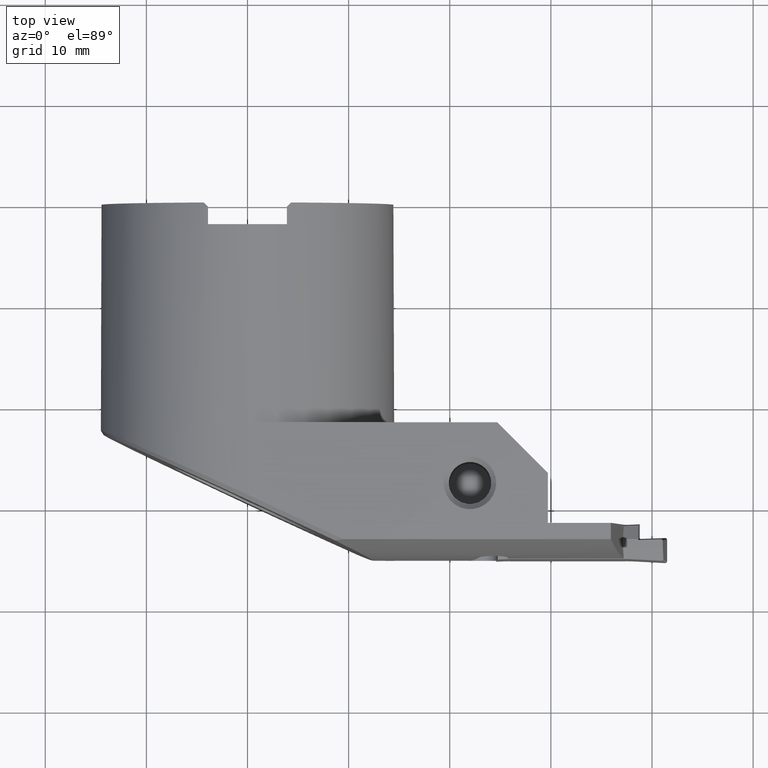
[diagram: clean part render]
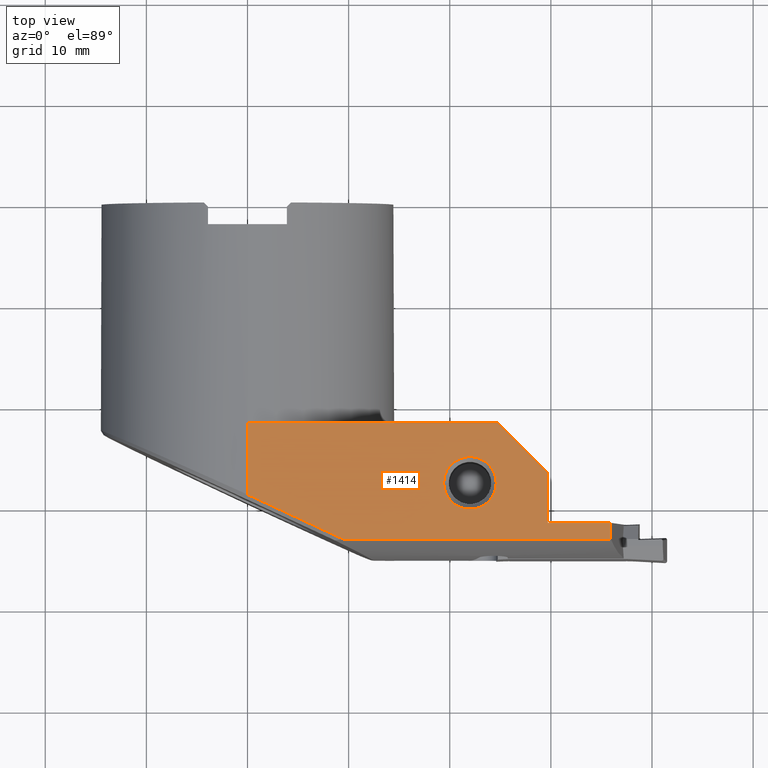
[diagram: same view with one face highlighted and labeled with its STEP entity id]
A machine part, top view. The second image highlights one B-rep face of the part: STEP entity #1414.
In plain terms, the highlighted planar face has unit normal (0, -0, 1).
Its self-contained STEP definition (entity closure, byte-faithful):
#988=VERTEX_POINT('NONE',#2482);
#1044=VERTEX_POINT('NONE',#2542);
#1130=VERTEX_POINT('NONE',#2630);
#1150=EDGE_CURVE('NONE',#1486,#1044,#2652,.T.);
#1196=VERTEX_POINT('NONE',#2705);
#1272=EDGE_CURVE('NONE',#1564,#1196,#2788,.T.);
#1394=EDGE_CURVE('Kante1',#1842,#1456,#2922,.F.);
#1414=ADVANCED_FACE('NONE',(#2943,#2944),#2945,.T.);
#1456=VERTEX_POINT('NONE',#2993);
#1486=VERTEX_POINT('NONE',#3026);
#1502=EDGE_CURVE('NONE',#1130,#1842,#3043,.F.);
#1564=VERTEX_POINT('NONE',#3107);
#1580=EDGE_CURVE('NONE',#1196,#1942,#3124,.T.);
#1736=EDGE_CURVE('NONE',#988,#1942,#3296,.F.);
#1754=EDGE_CURVE('NONE',#1044,#1486,#3318,.F.);
#1842=VERTEX_POINT('NONE',#3416);
#1942=VERTEX_POINT('NONE',#3527);
#2016=EDGE_CURVE('NONE',#1130,#2206,#3612,.T.);
#2116=EDGE_CURVE('NONE',#2206,#988,#3719,.T.);
#2136=EDGE_CURVE('NONE',#1564,#1456,#3742,.T.);
#2206=VERTEX_POINT('NONE',#3818);
#2482=CARTESIAN_POINT('',(35.9353190227002,-33.3145965961622,14.5));
#2542=CARTESIAN_POINT('',(24.6,-27.75,14.5));
#2630=CARTESIAN_POINT('',(0.0,-28.8986775761313,14.5));
#2652=CIRCLE('',#4704,2.60000000000002);
#2705=CARTESIAN_POINT('',(29.7,-31.7,14.5));
#2788=LINE('',#4910,#4911);
#2922=LINE('',#5159,#5160);
#2943=FACE_OUTER_BOUND('',#5188,.T.);
#2944=FACE_BOUND('',#5189,.T.);
#2945=PLANE('',#5190);
#2993=CARTESIAN_POINT('',(24.7,-21.75,14.5));
#3026=CARTESIAN_POINT('',(19.4,-27.75,14.5));
#3043=LINE('',#5304,#5305);
#3107=CARTESIAN_POINT('',(29.7,-26.75,14.5));
#3124=LINE('',#5439,#5440);
#3296=LINE('',#5820,#5821);
#3318=CIRCLE('',#5850,2.60000000000002);
#3416=CARTESIAN_POINT('',(0.0,-21.75,14.5));
#3527=CARTESIAN_POINT('',(35.9353190227002,-31.7,14.5));
#3612=LINE('',#6431,#6432);
#3719=LINE('',#6666,#6667);
#3742=LINE('',#6747,#6748);
#3818=CARTESIAN_POINT('',(9.46996889886603,-33.3145965961622,14.5));
#4704=AXIS2_PLACEMENT_3D('',#7349,#7350,#7351);
#4910=CARTESIAN_POINT('',(29.7,-30.435,14.5));
#4911=VECTOR('',#7507,1.0);
#5159=CARTESIAN_POINT('',(8.67361737988404E-016,-21.75,14.5));
#5160=VECTOR('',#7644,1.0);
#5188=EDGE_LOOP('',(#7660,#7661,#7662,#7663,#7664,#7665,#7666,#7667));
#5189=EDGE_LOOP('',(#7668,#7669));
#5190=AXIS2_PLACEMENT_3D('',#7670,#7671,#7672);
#5304=CARTESIAN_POINT('',(0.0,-29.17,14.5));
#5305=VECTOR('',#7775,1.0);
#5439=CARTESIAN_POINT('',(14.85,-31.7,14.5));
#5440=VECTOR('',#7832,1.0);
#5820=CARTESIAN_POINT('',(35.9353190227002,-32.2355,14.5));
#5821=VECTOR('',#8028,1.0);
#5850=AXIS2_PLACEMENT_3D('',#8062,#8063,#8064);
#6431=CARTESIAN_POINT('',(6.69631727050828,-32.0212216008049,14.5));
#6432=VECTOR('',#8435,1.0);
#6666=CARTESIAN_POINT('',(-25.9440249167753,-33.3145965961622,14.5));
#6667=VECTOR('',#8537,1.0);
#6747=CARTESIAN_POINT('',(22.88,-19.93,14.5));
#6748=VECTOR('',#8572,1.0);
#7349=CARTESIAN_POINT('',(22.0,-27.75,14.5));
#7350=DIRECTION('',(0.0,0.0,-1.0));
#7351=DIRECTION('',(-1.0,0.0,0.0));
#7507=DIRECTION('',(0.0,-1.0,0.0));
#7644=DIRECTION('',(-1.0,0.0,0.0));
#7660=ORIENTED_EDGE('',*,*,#2016,.T.);
#7661=ORIENTED_EDGE('',*,*,#2116,.T.);
#7662=ORIENTED_EDGE('',*,*,#1736,.T.);
#7663=ORIENTED_EDGE('',*,*,#1580,.F.);
#7664=ORIENTED_EDGE('',*,*,#1272,.F.);
#7665=ORIENTED_EDGE('',*,*,#2136,.T.);
#7666=ORIENTED_EDGE('',*,*,#1394,.F.);
#7667=ORIENTED_EDGE('',*,*,#1502,.F.);
#7668=ORIENTED_EDGE('',*,*,#1150,.T.);
#7669=ORIENTED_EDGE('',*,*,#1754,.T.);
#7670=CARTESIAN_POINT('',(1.73472347597681E-015,-29.17,14.5));
#7671=DIRECTION('',(0.0,-0.0,1.0));
#7672=DIRECTION('',(0.0,1.0,0.0));
#7775=DIRECTION('',(0.0,-1.0,0.0));
#7832=DIRECTION('',(1.0,-5.84300777669874E-046,0.0));
#8028=DIRECTION('',(0.0,-1.0,0.0));
#8062=CARTESIAN_POINT('',(22.0,-27.75,14.5));
#8063=DIRECTION('',(0.0,0.0,1.0));
#8064=DIRECTION('',(-1.0,0.0,0.0));
#8435=DIRECTION('',(0.906307787036649,-0.422618261740701,0.0));
#8537=DIRECTION('',(1.0,0.0,0.0));
#8572=DIRECTION('',(-0.707106781186548,0.707106781186547,-0.0));